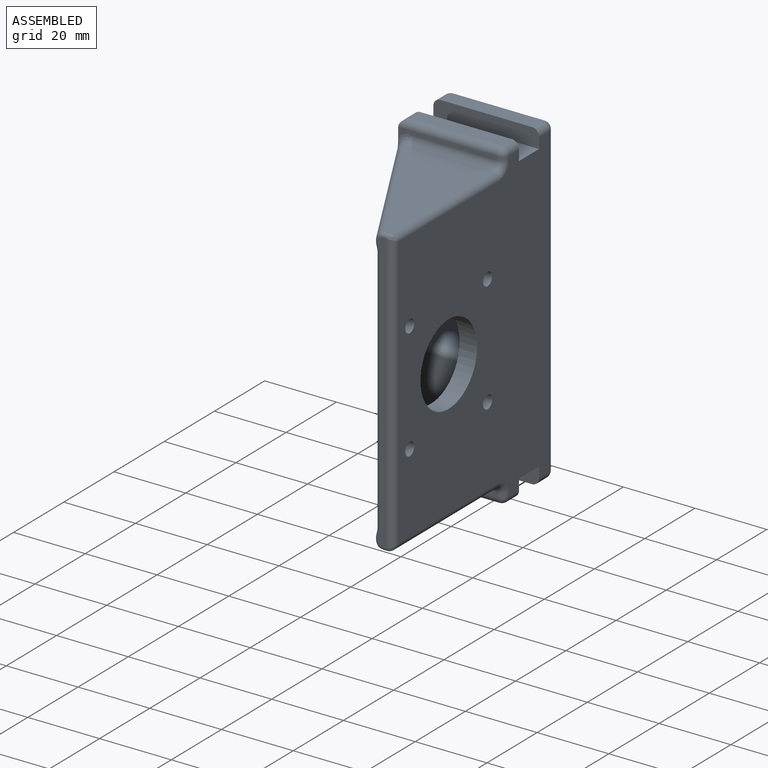
[diagram: assembled view]
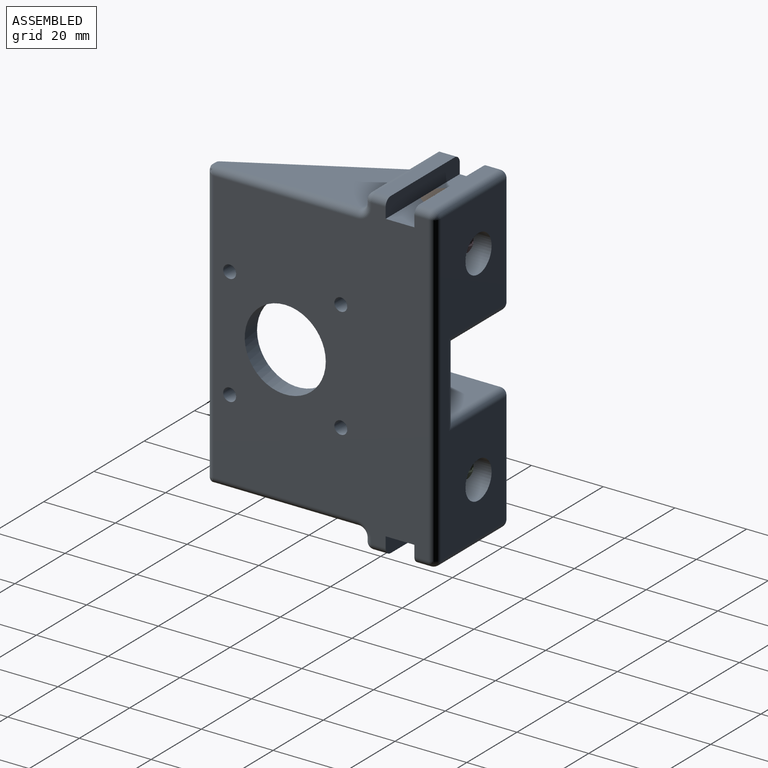
[diagram: assembled view, second angle]
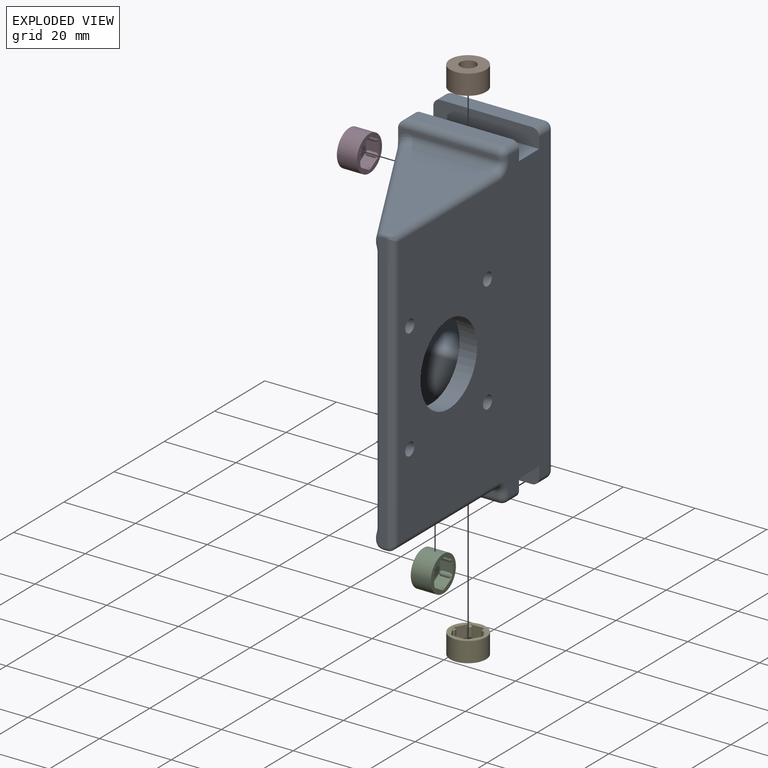
[diagram: exploded view]
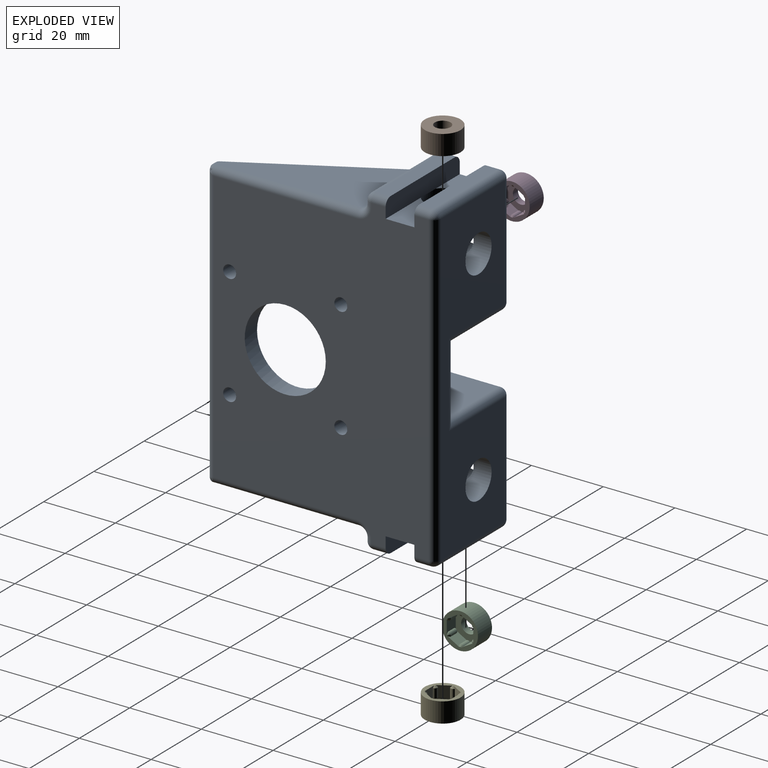
[diagram: exploded view, second angle]
ASSEMBLY  parts=5 mates=4
PART A: 133 faces, bbox 90.5x64.9x31.1 mm
  f0: cylinder r=5.2mm len=20mm, axis (0,1,0), area 485.6mm2, adj f1,f10,f17,f23,f24,f52,f81
  f1: cylinder r=5mm len=11.07mm, axis (0,0,1), area 265.4mm2, adj f0,f13,f52
  f2: plane 14x8mm, normal (1,0,0), area 100.8mm2, adj f4,f47,f48,f52
  f3: plane 25.5x4mm, normal (1,0,0), area 102mm2, adj f48,f69,f114,f115
  f4: plane 86x60mm, normal (0,0,-1), area 4237mm2, adj f2,f5,f28,f29,f30,f31,f32,f41
  f5: plane 14x8mm, normal (-1,0,0), area 100.8mm2, adj f4,f41,f42,f46
  f6: plane 25.5x4mm, normal (-1,0,0), area 102mm2, adj f42,f53,f97,f116
  f7: plane 31.71x18.46mm, normal (0,0,1), area 405.3mm2, adj f34,f36,f41,f42,f43,f53,f54,f57
  f8: plane 27.5x2.33mm, normal (0,-1,0), area 28.9mm2, adj f13,f74,f107,f109,f112
  f9: plane 25.5x1.19mm, normal (0,-1,0), area 25.6mm2, adj f70,f71,f102,f104,f105
  f10: plane 66.39x22.6mm, normal (0,-1,0), area 803.9mm2, adj f0,f18,f27,f57,f60,f61,f62,f63
  f11: plane 25.5x4mm, normal (-1,0,0), area 102mm2, adj f41,f71,f73,f100
  f12: plane 25.5x4mm, normal (1,0,0), area 102mm2, adj f47,f74,f75,f108
  f13: plane 31.71x18.46mm, normal (0,0,1), area 412.4mm2, adj f1,f8,f39,f47,f48,f49,f62,f65
  f14: plane 20.25x16mm, normal (-1,0,0), area 324mm2, adj f15,f63,f65,f66
  f15: plane 19.5x16mm, normal (0,0,1), area 312mm2, adj f14,f16,f61,f99
  f16: plane 20.25x16mm, normal (1,0,0), area 324mm2, adj f15,f55,f58,f60
  f17: plane 86x25.5mm, normal (0,1,0), area 1500.2mm2, adj f0,f18,f54,f55,f66,f68,f97,f99
  f18: cylinder r=5.2mm len=20mm, axis (0,1,0), area 485.5mm2, adj f10,f17,f19,f20,f34,f46,f88
  f19: cylinder r=0.05mm len=1.3mm, axis (1,0,0), area 0.4mm2, adj f18,f22
  f20: cylinder r=0.05mm len=1.3mm, axis (0,0,-1), area 0.4mm2, adj f18,f21
  f21: cylinder r=6.5mm len=0.1mm, axis (0,1,0), area 0mm2, adj f20
  f22: cylinder r=6.5mm len=0.1mm, axis (0,1,0), area 0mm2, adj f19
  f23: cylinder r=0.05mm len=1.3mm, axis (1,0,0), area 0.4mm2, adj f0,f26
  f24: cylinder r=0.05mm len=1.3mm, axis (0,0,-1), area 0.4mm2, adj f0,f25
  f25: cylinder r=6.5mm len=0.1mm, axis (0,1,0), area 0mm2, adj f24
  f26: cylinder r=6.5mm len=0.1mm, axis (0,1,0), area 0mm2, adj f23
  f27: plane 69.81x43.45mm, normal (0,0,1), area 2402.8mm2, adj f10,f28,f29,f30,f31,f32,f78,f79
  f28: cylinder r=11.3mm len=22.6mm, axis (0,0,-1), area 347.9mm2, adj f4,f27
  f29: cylinder r=1.8mm len=4.9mm, axis (0,0,-1), area 55.4mm2, adj f4,f27
  f30: cylinder r=1.8mm len=4.9mm, axis (0,0,-1), area 55.4mm2, adj f4,f27
  f31: cylinder r=1.8mm len=4.9mm, axis (0,0,-1), area 55.4mm2, adj f4,f27
  f32: cylinder r=1.8mm len=4.9mm, axis (0,0,-1), area 55.4mm2, adj f4,f27
  f33: plane 78x2.31mm, normal (0,-1,0), area 150.1mm2, adj f94,f121,f122,f123,f124,f125,f126,f127
  f34: cylinder r=5mm len=11.07mm, axis (0,0,1), area 304.1mm2, adj f7,f18,f46
  f35: plane 41x24.09mm, normal (-1,0,0), area 517.8mm2, adj f93,f96,f104,f121
  f36: plane 43.49x24.31mm, normal (0,-0.49,0.87), area 49.8mm2, adj f7,f77,f96,f123
  f37: plane 34.45x19.19mm, normal (1,0,0), area 329.7mm2, adj f77,f86,f87,f88,f89
  f38: plane 41x24.09mm, normal (1,0,0), area 517.8mm2, adj f92,f95,f109,f131
  f39: plane 43.93x24.76mm, normal (0,-0.49,0.87), area 50.8mm2, adj f13,f76,f92,f107,f129
  f40: plane 34.45x19.19mm, normal (-1,0,0), area 329.7mm2, adj f76,f79,f80,f81,f82
  f41: plane 29.5x5mm, normal (0,1,0), area 145.8mm2, adj f4,f5,f7,f11,f43,f44,f73,f100
  f42: plane 29.5x5mm, normal (0,-1,0), area 145.8mm2, adj f4,f5,f6,f7,f43,f45,f53,f116
  f43: plane 9.5x8mm, normal (-1,0,0), area 64.8mm2, adj f7,f41,f42,f46
  f44: plane 6x1mm, normal (1,0,0), area 4.1mm2, adj f41,f46
  f45: plane 6x1mm, normal (1,0,0), area 4.1mm2, adj f42,f46
  f46: cylinder r=5mm len=10.07mm, axis (-1,0,0), area 232.4mm2, adj f5,f18,f34,f43,f44,f45
  f47: plane 29.5x5mm, normal (0,1,0), area 145.8mm2, adj f2,f4,f12,f13,f49,f51,f75,f108
  f48: plane 29.5x5mm, normal (0,-1,0), area 145.8mm2, adj f2,f3,f4,f13,f49,f50,f69,f114
  f49: plane 9.5x8mm, normal (1,0,0), area 64.8mm2, adj f13,f47,f48,f52
  f50: plane 6x1mm, normal (-1,0,0), area 4.1mm2, adj f48,f52
  f51: plane 6x1mm, normal (-1,0,0), area 4.1mm2, adj f47,f52
  f52: cylinder r=5mm len=10.09mm, axis (1,0,0), area 234mm2, adj f0,f1,f2,f49,f50,f51
  f53: cylinder r=2mm len=4mm, axis (0,-1,0), area 12.6mm2, adj f6,f7,f42,f98
  f54: cylinder r=2mm len=31.25mm, axis (-1,0,0), area 98.2mm2, adj f7,f17,f56,f98
  f55: cylinder r=2mm len=22.25mm, axis (0,0,1), area 66.8mm2, adj f16,f17,f56,f99
  f56: sphere r=2mm, area 8.6mm2, adj f54,f55,f58
  f57: cylinder r=2mm len=22.36mm, axis (1,0,0), area 68.8mm2, adj f7,f10,f59,f91
  f58: cylinder r=2mm len=16mm, axis (0,1,0), area 50.3mm2, adj f7,f16,f56,f59
  f59: sphere r=2mm, area 8.6mm2, adj f57,f58,f60
  f60: cylinder r=2mm len=22.25mm, axis (0,0,-1), area 66.8mm2, adj f10,f16,f59,f61
  f61: cylinder r=2mm len=23.5mm, axis (1,0,0), area 67.5mm2, adj f10,f15,f60,f63
  f62: cylinder r=2mm len=22.36mm, axis (1,0,0), area 68.8mm2, adj f10,f13,f64,f84
  f63: cylinder r=2mm len=22.25mm, axis (0,0,1), area 66.8mm2, adj f10,f14,f61,f64
  f64: sphere r=2mm, area 6.3mm2, adj f62,f63,f65
  f65: cylinder r=2mm len=16mm, axis (0,1,0), area 50.3mm2, adj f13,f14,f64,f67
  f66: cylinder r=2mm len=22.25mm, axis (0,0,-1), area 66.8mm2, adj f14,f17,f67,f99
  f67: sphere r=2mm, area 8.6mm2, adj f65,f66,f68
  f68: cylinder r=2mm len=31.25mm, axis (-1,0,0), area 98.2mm2, adj f13,f17,f67,f113
  f69: cylinder r=2mm len=4mm, axis (0,-1,0), area 12.6mm2, adj f3,f13,f48,f113
  f70: cylinder r=2mm len=2.71mm, axis (1,0,0), area 6.9mm2, adj f7,f9,f72,f106
  f71: cylinder r=2mm len=25.5mm, axis (0,0,1), area 80.1mm2, adj f9,f11,f72,f101
  f72: sphere r=2mm, area 6.3mm2, adj f70,f71,f73
  f73: cylinder r=2mm len=4mm, axis (0,-1,0), area 12.6mm2, adj f7,f11,f41,f72
  f74: cylinder r=2mm len=27.5mm, axis (0,0,-1), area 83.3mm2, adj f8,f12,f75,f110
  f75: cylinder r=2mm len=6mm, axis (0,-1,0), area 15.7mm2, adj f12,f13,f47,f74
  f76: cylinder r=2mm len=45.03mm, axis (0,-0.87,-0.49), area 144.8mm2, adj f13,f39,f40,f78,f83,f84,f128
  f77: cylinder r=2mm len=45.03mm, axis (0,-0.87,-0.49), area 144.8mm2, adj f7,f36,f37,f85,f90,f91,f124
  f78: bspline ~8.13x3.74mm, area 16.5mm2, adj f27,f76,f79,f127
  f79: cylinder r=2mm len=36.32mm, axis (0,1,0), area 111mm2, adj f27,f40,f78,f80
  f80: cylinder r=2mm len=9.49mm, axis (0,0,1), area 26.7mm2, adj f10,f40,f79,f81
  f81: bspline ~5.21x2mm, area 13.9mm2, adj f0,f40,f80,f82
  f82: cylinder r=2mm len=6.48mm, axis (0,0,1), area 20.4mm2, adj f10,f40,f81,f83
  f83: bspline ~2.1x2mm, area 3.3mm2, adj f10,f76,f82,f84
  f84: bspline ~4.75x3.79mm, area 6.4mm2, adj f13,f62,f76,f83
  f85: bspline ~8.13x3.74mm, area 16.5mm2, adj f27,f77,f86,f125
  f86: cylinder r=2mm len=36.32mm, axis (0,1,0), area 111mm2, adj f27,f37,f85,f87
  f87: cylinder r=2mm len=9.49mm, axis (0,0,1), area 26.7mm2, adj f10,f37,f86,f88
  f88: bspline ~5.21x2mm, area 13.9mm2, adj f18,f37,f87,f89
  f89: cylinder r=2mm len=6.48mm, axis (0,0,1), area 20.4mm2, adj f10,f37,f88,f90
  f90: bspline ~2.74x2.2mm, area 3.3mm2, adj f10,f77,f89,f91
  f91: bspline ~4.75x3.79mm, area 6.4mm2, adj f7,f57,f77,f90
  f92: cylinder r=2mm len=43.93mm, axis (0,-0.87,-0.49), area 150.2mm2, adj f38,f39,f107,f130
  f93: cylinder r=2mm len=41mm, axis (0,-1,0), area 127.2mm2, adj f4,f35,f103,f120
  f94: cylinder r=2mm len=78mm, axis (-1,0,0), area 241.9mm2, adj f4,f33,f120,f132
  f95: cylinder r=2mm len=41mm, axis (0,-1,0), area 127.2mm2, adj f4,f38,f111,f132
  f96: cylinder r=2mm len=45.52mm, axis (0,-0.87,-0.49), area 154.5mm2, adj f7,f35,f36,f105,f106,f122
  f97: cylinder r=2mm len=25.5mm, axis (0,0,-1), area 80.1mm2, adj f6,f17,f98,f118
  f98: sphere r=2mm, area 8.6mm2, adj f53,f54,f97
  f99: cylinder r=2mm len=23.5mm, axis (-1,0,0), area 67.5mm2, adj f15,f17,f55,f66
  f100: cylinder r=2mm len=4mm, axis (0,-1,0), area 12.6mm2, adj f4,f11,f41,f101
  f101: sphere r=2mm, area 6.3mm2, adj f71,f100,f102
  f102: cylinder r=2mm len=2mm, axis (-1,0,0), area 3.1mm2, adj f4,f9,f101,f103
  f103: torus R=4mm, axis (0,0,-1), area 13.5mm2, adj f4,f93,f102,f104
  f104: cylinder r=2mm len=24.09mm, axis (0,0,-1), area 75.7mm2, adj f9,f35,f103,f105
  f105: bspline ~2.19x2.14mm, area 3.3mm2, adj f9,f96,f104,f106
  f106: bspline ~4.75x3.79mm, area 6.4mm2, adj f7,f70,f96,f105
  f107: bspline ~4.58x4mm, area 10.1mm2, adj f8,f39,f92,f109
  f108: cylinder r=2mm len=4mm, axis (0,1,0), area 12.6mm2, adj f4,f12,f47,f110
  f109: cylinder r=2mm len=24.09mm, axis (0,0,-1), area 75.7mm2, adj f8,f38,f107,f111
  f110: sphere r=2mm, area 6.3mm2, adj f74,f108,f112
  f111: torus R=4mm, axis (0,0,-1), area 13.5mm2, adj f4,f95,f109,f112
  f112: cylinder r=2mm len=2mm, axis (-1,0,0), area 3.1mm2, adj f4,f8,f110,f111
  f113: sphere r=2mm, area 4mm2, adj f68,f69,f115
  f114: cylinder r=2mm len=4mm, axis (0,1,0), area 12.6mm2, adj f3,f4,f48,f117
  f115: cylinder r=2mm len=25.5mm, axis (0,0,1), area 80.1mm2, adj f3,f17,f113,f117
  f116: cylinder r=2mm len=4mm, axis (0,-1,0), area 12.6mm2, adj f4,f6,f42,f118
  f117: sphere r=2mm, area 4mm2, adj f114,f115,f119
  f118: sphere r=2mm, area 4mm2, adj f97,f116,f119
  f119: cylinder r=2mm len=86mm, axis (1,0,0), area 270.2mm2, adj f4,f17,f117,f118
  f120: bspline ~2.39x2mm, area 2.2mm2, adj f93,f94,f121
  f121: cylinder r=1mm len=1.17mm, axis (0,0,1), area 1.8mm2, adj f33,f35,f120,f122
  f122: bspline ~2.41x2.38mm, area 3.2mm2, adj f33,f96,f121,f123
  f123: cylinder r=1mm len=1mm, axis (-1,0,0), area 1.1mm2, adj f33,f36,f122,f124
  f124: bspline ~0.89x0.52mm, area 0.2mm2, adj f33,f77,f123,f125
  f125: bspline ~2.61x1.28mm, area 2.9mm2, adj f33,f85,f124,f126
  f126: cylinder r=1mm len=69.36mm, axis (-1,0,0), area 108.9mm2, adj f27,f33,f125,f127
  f127: bspline ~2.46x1.28mm, area 2.9mm2, adj f33,f78,f126,f128
  f128: bspline ~0.89x0.7mm, area 0.2mm2, adj f33,f76,f127,f129
  f129: cylinder r=1mm len=1mm, axis (-1,0,0), area 1.1mm2, adj f33,f39,f128,f130
  f130: bspline ~2.11x2.11mm, area 3.2mm2, adj f33,f92,f129,f131
  f131: cylinder r=1mm len=1.17mm, axis (0,0,1), area 1.8mm2, adj f33,f38,f130,f132
  f132: bspline ~2.39x2mm, area 2.2mm2, adj f94,f95,f131
PART B: 29 faces, bbox 10x10x5.6 mm
  f0: plane 3.77x3.6mm, normal (0,-1,0), area 10.5mm2, adj f7,f8,f9,f10,f17,f18,f19,f26
  f1: plane 3.6x3.27mm, normal (-0.87,-0.5,0), area 10.5mm2, adj f7,f8,f9,f10,f14,f15,f16,f26
  f2: plane 3.6x3.27mm, normal (-0.87,0.5,0), area 10.5mm2, adj f7,f11,f12,f13,f14,f15,f16,f26
  f3: plane 3.77x3.6mm, normal (0,1,0), area 10.5mm2, adj f7,f11,f12,f13,f23,f24,f25,f26
  f4: plane 3.6x3.27mm, normal (0.87,0.5,0), area 10.5mm2, adj f7,f20,f21,f22,f23,f24,f25,f26
  f5: cylinder r=5mm len=10mm, axis (0,0,-1), area 175.9mm2, adj f7,f27
  f6: plane 3.6x3.27mm, normal (0.87,-0.5,0), area 10.5mm2, adj f7,f17,f18,f19,f20,f21,f22,f26
  f7: plane 10x10mm, normal (0,0,1), area 31.5mm2, adj f0,f1,f2,f3,f4,f5,f6,f9
  f8: cylinder r=0.75mm len=2.6mm, axis (0,0,-1), area 4.1mm2, adj f0,f1,f9,f10
  f9: cone r=0.25mm half-angle=45deg, axis (0,0,-1), area 0.7mm2, adj f0,f1,f7,f8
  f10: cone r=0.75mm half-angle=45deg, axis (0,0,1), area 0.7mm2, adj f0,f1,f8,f26
  f11: cylinder r=0.75mm len=2.6mm, axis (0,0,-1), area 4.1mm2, adj f2,f3,f12,f13
  f12: cone r=0.25mm half-angle=45deg, axis (0,0,-1), area 0.7mm2, adj f2,f3,f7,f11
  f13: cone r=0.75mm half-angle=45deg, axis (0,0,1), area 0.7mm2, adj f2,f3,f11,f26
  f14: cylinder r=0.75mm len=2.6mm, axis (0,0,-1), area 4.1mm2, adj f1,f2,f15,f16
  f15: cone r=0.25mm half-angle=45deg, axis (0,0,-1), area 0.7mm2, adj f1,f2,f7,f14
  f16: cone r=0.75mm half-angle=45deg, axis (0,0,1), area 0.7mm2, adj f1,f2,f14,f26
  f17: cone r=0.75mm half-angle=45deg, axis (0,0,1), area 0.7mm2, adj f0,f6,f19,f26
  f18: cone r=0.25mm half-angle=45deg, axis (0,0,-1), area 0.7mm2, adj f0,f6,f7,f19
  f19: cylinder r=0.75mm len=2.6mm, axis (0,0,-1), area 4.1mm2, adj f0,f6,f17,f18
  f20: cone r=0.75mm half-angle=45deg, axis (0,0,1), area 0.7mm2, adj f4,f6,f22,f26
  f21: cone r=0.25mm half-angle=45deg, axis (0,0,-1), area 0.7mm2, adj f4,f6,f7,f22
  f22: cylinder r=0.75mm len=2.6mm, axis (0,0,-1), area 4.1mm2, adj f4,f6,f20,f21
  f23: cylinder r=0.75mm len=2.6mm, axis (0,0,-1), area 4.1mm2, adj f3,f4,f24,f25
  f24: cone r=0.25mm half-angle=45deg, axis (0,0,-1), area 0.7mm2, adj f3,f4,f7,f23
  f25: cone r=0.75mm half-angle=45deg, axis (0,0,1), area 0.7mm2, adj f3,f4,f23,f26
  f26: plane 8.29x7.4mm, normal (0,0,1), area 31.8mm2, adj f0,f1,f2,f3,f4,f6,f10,f13
  f27: plane 10x10mm, normal (0,0,-1), area 63.3mm2, adj f5,f28
  f28: cylinder r=2.2mm len=4.4mm, axis (0,0,-1), area 27.6mm2, adj f26,f27
PART C: same geometry as B
PART D: same geometry as B
PART E: same geometry as B
PLACE A rot(axis=(0,-1,0),90deg) t=(-30.97,32.7,59.75)mm
PLACE B rot(axis=(1,0,0),180deg) t=(-15.13,2.7,97.75)mm
PLACE C rot(axis=(-0.71,0,-0.71),180deg) t=(-25.63,2.7,31.25)mm
PLACE D rot(axis=(-0.71,0,-0.71),180deg) t=(-25.63,2.7,88.25)mm
PLACE E t=(-15.13,2.7,21.75)mm
MATE fastened B.f5 <-> A.f19  axis (0,0,1) through (-15.13,2.7,99.75)mm
MATE fastened C.f5 <-> A.f20  axis (-1,0,0) through (-27.63,2.7,31.25)mm
MATE fastened D.f5 <-> A.f24  axis (-1,0,0) through (-27.63,2.7,88.25)mm
MATE fastened A.f19 <-> E.f5  axis (0,0,-1) through (-15.13,2.7,19.75)mm
